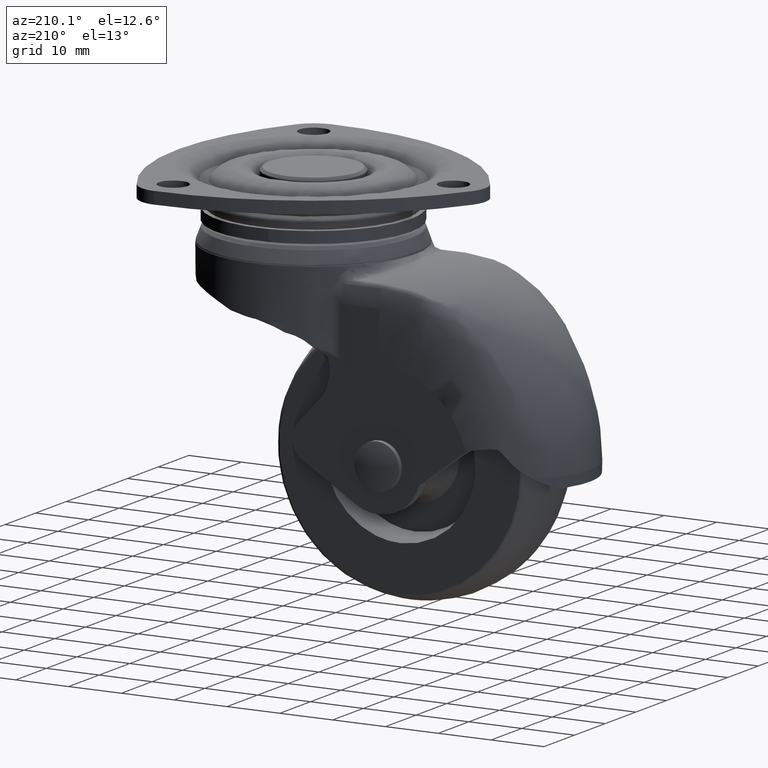
[diagram: clean part render]
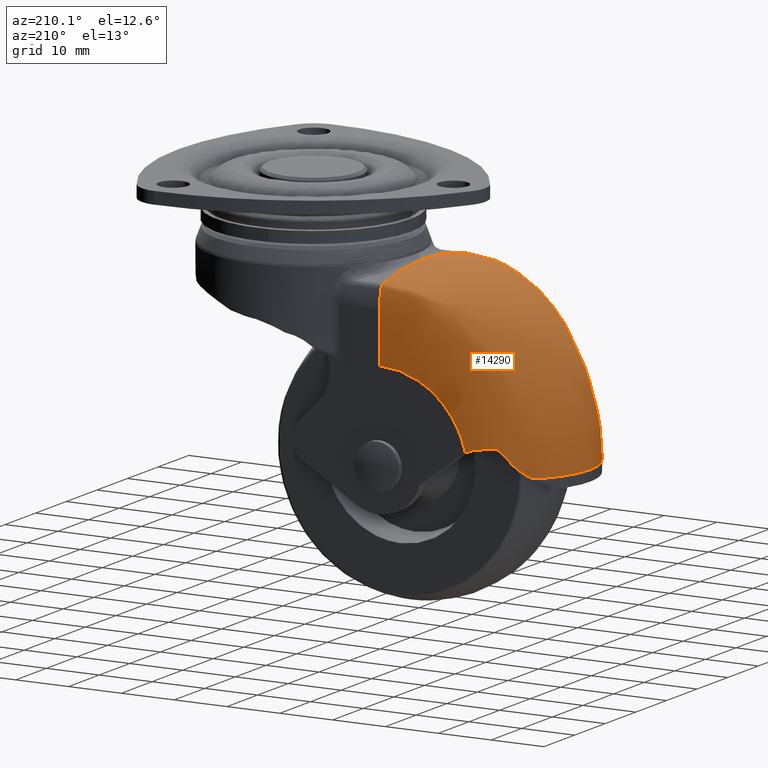
[diagram: same view with one face highlighted and labeled with its STEP entity id]
A machine part, auxiliary view. The second image highlights one B-rep face of the part: STEP entity #14290.
In plain terms, the highlighted face is a freeform B-spline surface patch.
Its self-contained STEP definition (entity closure, byte-faithful):
#13872=CARTESIAN_POINT('',(-37.507785986990321,-14.650000000000000,-45.136798871764711));
#13873=CARTESIAN_POINT('',(-37.590064622058243,-14.649670169952190,-45.137465871882618));
#13874=CARTESIAN_POINT('',(-40.490834383818459,-14.673200490685360,-45.160981256787913));
#13875=CARTESIAN_POINT('',(-43.195526079588312,-13.857220814223821,-45.182907114922060));
#13876=CARTESIAN_POINT('',(-46.193929416081289,-12.010466249976680,-45.207213976324319));
#13877=CARTESIAN_POINT('',(-46.914141203369390,-11.469304168599541,-45.213052446379642));
#13878=CARTESIAN_POINT('',(-47.792334467915687,-10.674972452148920,-45.220171609337442));
#13879=CARTESIAN_POINT('',(-48.000030699863387,-10.475745752831561,-45.221855319951779));
#13880=CARTESIAN_POINT('',(-50.801237226097690,-7.626765067873031,-45.244563585368773));
#13881=CARTESIAN_POINT('',(-52.404853000000188,-4.000654800252035,-45.257563459629957));
#13882=CARTESIAN_POINT('',(-52.404853000000188,4.000654800251945,-45.257563459629957));
#13883=CARTESIAN_POINT('',(-50.801237226097783,7.626765067872871,-45.244563585368773));
#13884=CARTESIAN_POINT('',(-48.000030699863487,10.475745752831401,-45.221855319951793));
#13885=CARTESIAN_POINT('',(-47.792334467915779,10.674972452148740,-45.220171609337442));
#13886=CARTESIAN_POINT('',(-46.914141203369489,11.469304168599400,-45.213052446379642));
#13887=CARTESIAN_POINT('',(-46.193929416081481,12.010466249976560,-45.207213976324319));
#13888=CARTESIAN_POINT('',(-43.195526079588433,13.857220814223890,-45.182907114922060));
#13889=CARTESIAN_POINT('',(-40.490834377141809,14.673200492696809,-45.160981256733777));
#13890=CARTESIAN_POINT('',(-37.590064607752069,14.649670169895810,-45.137465871766643));
#13891=CARTESIAN_POINT('',(-37.507785965550809,14.650000000000000,-45.136798871590912));
#13892=CARTESIAN_POINT('',(-37.582172990328559,-14.650000000000009,-35.908108779774253));
#13893=CARTESIAN_POINT('',(-37.664768644907006,-14.649666847081050,-35.863914424601653));
#13894=CARTESIAN_POINT('',(-40.576766111574941,-14.673434223911050,-34.305728627762882));
#13895=CARTESIAN_POINT('',(-43.290710124771721,-13.849233964339311,-32.855113936310701));
#13896=CARTESIAN_POINT('',(-46.295826234948890,-11.983874280605169,-31.253513909538722));
#13897=CARTESIAN_POINT('',(-47.017314881525643,-11.438862998568530,-30.869431407652250));
#13898=CARTESIAN_POINT('',(-47.896743636444263,-10.640697658623020,-30.401692117269569));
#13899=CARTESIAN_POINT('',(-48.105109771162113,-10.442204170076099,-30.290372753182709));
#13900=CARTESIAN_POINT('',(-50.928019005876948,-7.612494868448397,-28.765623190854281));
#13901=CARTESIAN_POINT('',(-52.544766047531802,-3.995406374036487,-27.891439842274089));
#13902=CARTESIAN_POINT('',(-52.544766047531802,3.995406376460966,-27.891439842274089));
#13903=CARTESIAN_POINT('',(-50.928019005876948,7.612494873297376,-28.765623190854232));
#13904=CARTESIAN_POINT('',(-48.105109771162311,10.442204180150449,-30.290372753182599));
#13905=CARTESIAN_POINT('',(-47.896743636444462,10.640697668697371,-30.401692117269480));
#13906=CARTESIAN_POINT('',(-47.017314881525763,11.438862998568389,-30.869431407652151));
#13907=CARTESIAN_POINT('',(-46.295826234948990,11.983874280605050,-31.253513909538611));
#13908=CARTESIAN_POINT('',(-43.290710124771849,13.849233964339390,-32.855113936310637));
#13909=CARTESIAN_POINT('',(-40.576766104875453,14.673434225942760,-34.305728631343783));
#13910=CARTESIAN_POINT('',(-37.664768630545538,14.649666847024100,-35.863914432286229));
#13911=CARTESIAN_POINT('',(-37.582172968806319,14.650000000000009,-35.908108791290282));
#13912=CARTESIAN_POINT('',(-30.072736908839349,-14.650000000000009,-28.452642677080419));
#13913=CARTESIAN_POINT('',(-30.123359264502710,-14.650003322973751,-28.358362780935948));
#13914=CARTESIAN_POINT('',(-31.902942617504220,-14.649766259556740,-25.043928728701260));
#13915=CARTESIAN_POINT('',(-33.684501418985640,-14.657987096514580,-21.728424403101020));
#13916=CARTESIAN_POINT('',(-36.015765977498781,-14.676592790518701,-17.396990294335570));
#13917=CARTESIAN_POINT('',(-36.609457444492222,-14.521353838594649,-16.294493497948551));
#13918=CARTESIAN_POINT('',(-37.365687286906343,-14.111383475879810,-14.890672815705271));
#13919=CARTESIAN_POINT('',(-37.506575165544923,-13.838644632065790,-14.628559709111070));
#13920=CARTESIAN_POINT('',(-38.133488785312707,-9.057503682726635,-13.437654587055160));
#13921=CARTESIAN_POINT('',(-38.421313823683398,-4.526865109606915,-12.886736109187421));
#13922=CARTESIAN_POINT('',(-38.421313823683398,4.526864866519200,-12.886736109187460));
#13923=CARTESIAN_POINT('',(-38.133488785312707,9.057503196550945,-13.437654587055210));
#13924=CARTESIAN_POINT('',(-37.506575165544923,13.838643621991009,-14.628559709111070));
#13925=CARTESIAN_POINT('',(-37.365687286906343,14.111382465805031,-14.890672815705271));
#13926=CARTESIAN_POINT('',(-36.609457444492222,14.521353838594630,-16.294493497948551));
#13927=CARTESIAN_POINT('',(-36.015765977498781,14.676592790518701,-17.396990294335570));
#13928=CARTESIAN_POINT('',(-33.684501418985640,14.657987096514580,-21.728424403101020));
#13929=CARTESIAN_POINT('',(-31.902942613106742,14.649766259536481,-25.043928736885039));
#13930=CARTESIAN_POINT('',(-30.123359255717350,14.650003322974319,-28.358362797298280));
#13931=CARTESIAN_POINT('',(-30.072736895661119,14.650000000000009,-28.452642701624029));
#13932=CARTESIAN_POINT('',(-20.863479068274081,-14.650000000000000,-28.526499447278550));
#13933=CARTESIAN_POINT('',(-20.862718797546670,-14.650000000000000,-28.432715298185670));
#13934=CARTESIAN_POINT('',(-20.835990923030330,-14.650000000000000,-25.135664815759430));
#13935=CARTESIAN_POINT('',(-20.809263048513991,-14.650000000000000,-21.838614333333190));
#13936=CARTESIAN_POINT('',(-20.774368715064739,-14.650000000000000,-17.534180067059989));
#13937=CARTESIAN_POINT('',(-20.765488807454741,-14.490911728554980,-16.438787926860439));
#13938=CARTESIAN_POINT('',(-20.754183630743938,-14.077107623964819,-15.044223675016100));
#13939=CARTESIAN_POINT('',(-20.752070879417101,-13.805102013562440,-14.783602585332529));
#13940=CARTESIAN_POINT('',(-20.742390265535491,-9.043233042645131,-13.589438318771411));
#13941=CARTESIAN_POINT('',(-20.737898484211101,-4.521616521322500,-13.035349000015289));
#13942=CARTESIAN_POINT('',(-20.737898484211101,4.521616280659419,-13.035349000015310));
#13943=CARTESIAN_POINT('',(-20.742390265535491,9.043232561318710,-13.589438318771430));
#13944=CARTESIAN_POINT('',(-20.752070879417101,13.805101013562460,-14.783602585332529));
#13945=CARTESIAN_POINT('',(-20.754183630743938,14.077106623964839,-15.044223675016100));
#13946=CARTESIAN_POINT('',(-20.765488807454741,14.490911728554959,-16.438787926860439));
#13947=CARTESIAN_POINT('',(-20.774368715064739,14.650000000000000,-17.534180067059989));
#13948=CARTESIAN_POINT('',(-20.809263048513991,14.650000000000000,-21.838614333333190));
#13949=CARTESIAN_POINT('',(-20.835990923096301,14.650000000000000,-25.135664823897649));
#13950=CARTESIAN_POINT('',(-20.862718797678621,14.650000000000000,-28.432715314462111));
#13951=CARTESIAN_POINT('',(-20.863479068472000,14.650000000000000,-28.526499471693210));
#13952=B_SPLINE_SURFACE_WITH_KNOTS('',3,3,((#13872,#13892,#13912,#13932),(#13873,#13893,#13913,#13933),(#13874,#13894,#13914,#13934),(#13875,#13895,#13915,#13935),(#13876,#13896,#13916,#13936),(#13877,#13897,#13917,#13937),(#13878,#13898,#13918,#13938),(#13879,#13899,#13919,#13939),(#13880,#13900,#13920,#13940),(#13881,#13901,#13921,#13941),(#13882,#13902,#13922,#13942),(#13883,#13903,#13923,#13943),(#13884,#13904,#13924,#13944),(#13885,#13905,#13925,#13945),(#13886,#13906,#13926,#13946),(#13887,#13907,#13927,#13947),(#13888,#13908,#13928,#13948),(#13889,#13909,#13929,#13949),(#13890,#13910,#13930,#13950),(#13891,#13911,#13931,#13951)),.UNSPECIFIED.,.F.,.F.,.U.,(4,1,2,2,2,2,2,2,2,1,4),(4,4),(0.0,0.281361691944565,9.891476450282717,13.195088795479849,14.255608239045751,27.923531647017619,41.591455054989268,42.651974498555127,45.955586843752343,55.565701602090712,55.847063318450743),(0.0,52.759160278087343),.UNSPECIFIED.);
#13953=CARTESIAN_POINT('',(-40.372742061059107,-14.326195942567001,-40.232056483145563));
#13954=VERTEX_POINT('',#13953);
#13955=CARTESIAN_POINT('',(-38.246648354372397,-14.616795402978999,-40.629877154874400));
#13956=VERTEX_POINT('',#13955);
#13957=CARTESIAN_POINT('',(-40.372742061059107,-14.326195942567001,-40.232056483145563));
#13958=CARTESIAN_POINT('',(-39.668545982057331,-14.473466884478171,-40.351903330451243));
#13959=CARTESIAN_POINT('',(-38.959746059757862,-14.569868453569709,-40.484304582149221));
#13960=CARTESIAN_POINT('',(-38.246648354372397,-14.616795402978999,-40.629877154874400));
#13961=QUASI_UNIFORM_CURVE('',3,(#13957,#13958,#13959,#13960),.UNSPECIFIED.,.F.,.U.);
#13962=EDGE_CURVE('',#13954,#13956,#13961,.T.);
#13963=ORIENTED_EDGE('',*,*,#13962,.T.);
#13964=CARTESIAN_POINT('',(-37.292854558070047,-14.650000000000000,-41.080166239784248));
#13965=VERTEX_POINT('',#13964);
#13966=CARTESIAN_POINT('',(-38.246648354372397,-14.616795402978999,-40.629877154874400));
#13967=CARTESIAN_POINT('',(-37.921902700070717,-14.639151141334960,-40.764704530933258));
#13968=CARTESIAN_POINT('',(-37.603950858915617,-14.650000000403971,-40.914773495138839));
#13969=CARTESIAN_POINT('',(-37.292854558070047,-14.650000000000000,-41.080166239784248));
#13970=QUASI_UNIFORM_CURVE('',3,(#13966,#13967,#13968,#13969),.UNSPECIFIED.,.F.,.U.);
#13971=EDGE_CURVE('',#13956,#13965,#13970,.T.);
#13972=ORIENTED_EDGE('',*,*,#13971,.T.);
#13973=CARTESIAN_POINT('',(-32.847470174085998,-14.650000000000000,-33.152529825918243));
#13974=VERTEX_POINT('',#13973);
#13975=CARTESIAN_POINT('',(-37.292854558070047,-14.650000000000000,-41.080166239784248));
#13976=CARTESIAN_POINT('',(-36.985582795129389,-14.650000000000000,-39.803651308520237));
#13977=CARTESIAN_POINT('',(-36.481438105542303,-14.650000000000000,-38.587721203335882));
#13978=CARTESIAN_POINT('',(-35.849127931827191,-14.650000000000000,-37.062672954460808));
#13979=CARTESIAN_POINT('',(-34.932129682278990,-14.650000000000000,-35.691267175491852));
#13980=CARTESIAN_POINT('',(-34.014775339978222,-14.650000000000000,-34.319328846260198));
#13981=CARTESIAN_POINT('',(-32.847470174085998,-14.650000000000000,-33.152529825918243));
#13982=B_SPLINE_CURVE_WITH_KNOTS('',2,(#13975,#13976,#13977,#13978,#13979,#13980,#13981),.UNSPECIFIED.,.F.,.U.,(3,2,2,3),(0.0,0.199482820191206,0.449482820191206,0.699482820191206),.UNSPECIFIED.);
#13983=EDGE_CURVE('',#13965,#13974,#13982,.T.);
#13984=ORIENTED_EDGE('',*,*,#13983,.T.);
#13985=CARTESIAN_POINT('',(-21.000000000000799,-14.650000000000000,-28.245146999999900));
#13986=VERTEX_POINT('',#13985);
#13987=CARTESIAN_POINT('',(-21.000000000000799,-14.650000000000000,-28.245146999999900));
#13988=CARTESIAN_POINT('',(-22.650204082939549,-14.650000000000000,-28.245196771580240));
#13989=CARTESIAN_POINT('',(-24.268709667104250,-14.650000000000000,-28.567086802280269));
#13990=CARTESIAN_POINT('',(-25.886724423888399,-14.650000000000000,-28.888879216733478));
#13991=CARTESIAN_POINT('',(-27.411804654814290,-14.650000000000000,-29.520534243065299));
#13992=CARTESIAN_POINT('',(-28.935951125976850,-14.650000000000000,-30.151802526433759));
#13993=CARTESIAN_POINT('',(-30.308497585421300,-14.650000000000000,-31.068848871905139));
#13994=CARTESIAN_POINT('',(-31.680203676837941,-14.650000000000000,-31.985333738074019));
#13995=CARTESIAN_POINT('',(-32.847470174085998,-14.650000000000000,-33.152529825918279));
#13996=B_SPLINE_CURVE_WITH_KNOTS('',2,(#13987,#13988,#13989,#13990,#13991,#13992,#13993,#13994,#13995),.UNSPECIFIED.,.F.,.U.,(3,2,2,2,3),(0.0,0.250000000000000,0.500000000000000,0.750000000000000,1.0),.UNSPECIFIED.);
#13997=EDGE_CURVE('',#13986,#13974,#13996,.T.);
#13998=ORIENTED_EDGE('',*,*,#13997,.F.);
#13999=CARTESIAN_POINT('',(-21.000000000000799,-14.649900124531261,-18.635348771970850));
#14000=VERTEX_POINT('',#13999);
#14001=CARTESIAN_POINT('',(-21.000000000000799,-14.650000000000000,-28.245146999999900));
#14002=CARTESIAN_POINT('',(-21.000000000000799,-14.649900124531261,-18.635348771970850));
#14003=QUASI_UNIFORM_CURVE('',1,(#14001,#14002),.UNSPECIFIED.,.F.,.U.);
#14004=EDGE_CURVE('',#13986,#14000,#14003,.T.);
#14005=ORIENTED_EDGE('',*,*,#14004,.T.);
#14006=CARTESIAN_POINT('',(-21.000000000000799,-14.177645488963741,-15.383120410583549));
#14007=VERTEX_POINT('',#14006);
#14008=CARTESIAN_POINT('',(-21.000000000000799,-14.649900124531261,-18.635348771970850));
#14009=CARTESIAN_POINT('',(-21.000000000000799,-14.649913433593991,-18.085720393858590));
#14010=CARTESIAN_POINT('',(-21.000000000000799,-14.610223001177809,-17.536095984093969));
#14011=CARTESIAN_POINT('',(-21.000000000000799,-14.452257703102740,-16.448252406921750));
#14012=CARTESIAN_POINT('',(-21.000000000000810,-14.333983990675319,-15.910041074401111));
#14013=CARTESIAN_POINT('',(-21.000000000000799,-14.177645488963741,-15.383120410583549));
#14014=B_SPLINE_CURVE_WITH_KNOTS('',3,(#14008,#14009,#14010,#14011,#14012,#14013),.UNSPECIFIED.,.F.,.U.,(4,2,4),(0.000000096777084,0.500000096777084,1.0),.UNSPECIFIED.);
#14015=EDGE_CURVE('',#14000,#14007,#14014,.T.);
#14016=ORIENTED_EDGE('',*,*,#14015,.T.);
#14017=CARTESIAN_POINT('',(-21.000000000000799,-13.462214724438899,-14.697654289980861));
#14018=VERTEX_POINT('',#14017);
#14019=CARTESIAN_POINT('',(-21.000000000000799,-14.177645488963741,-15.383120410583549));
#14020=CARTESIAN_POINT('',(-21.000000000000799,-14.153072149199939,-15.300305453071790));
#14021=CARTESIAN_POINT('',(-21.000000000000799,-14.117709626803769,-15.220698882076810));
#14022=CARTESIAN_POINT('',(-21.000000000000799,-14.027757594503580,-15.073195832365119));
#14023=CARTESIAN_POINT('',(-21.000000000000799,-13.973174825767741,-15.005310407794040));
#14024=CARTESIAN_POINT('',(-21.000000000000799,-13.848425182262970,-14.885785698458140));
#14025=CARTESIAN_POINT('',(-21.000000000000799,-13.778267656458199,-14.834155371091470));
#14026=CARTESIAN_POINT('',(-21.000000000000799,-13.627052215935921,-14.750591851949430));
#14027=CARTESIAN_POINT('',(-21.000000000000810,-13.546005633577341,-14.718664922575471));
#14028=CARTESIAN_POINT('',(-21.000000000000799,-13.462214724438899,-14.697654289980861));
#14029=B_SPLINE_CURVE_WITH_KNOTS('',3,(#14019,#14020,#14021,#14022,#14023,#14024,#14025,#14026,#14027,#14028),.UNSPECIFIED.,.F.,.U.,(4,2,2,2,4),(0.0,0.250000000000000,0.500000000000000,0.750000000000000,1.0),.UNSPECIFIED.);
#14030=EDGE_CURVE('',#14007,#14018,#14029,.T.);
#14031=ORIENTED_EDGE('',*,*,#14030,.T.);
#14032=CARTESIAN_POINT('',(-21.000000000000799,13.462208582764459,-14.697673685123281));
#14033=VERTEX_POINT('',#14032);
#14034=CARTESIAN_POINT('',(-21.000000000000799,-13.462214724438899,-14.697654289980861));
#14035=CARTESIAN_POINT('',(-21.000000000000810,-11.263848638151369,-14.146357031961500));
#14036=CARTESIAN_POINT('',(-21.000000000000799,-9.031583582280856,-13.730271331418530));
#14037=CARTESIAN_POINT('',(-21.000000000000810,-4.532871494255408,-13.174788938461880));
#14038=CARTESIAN_POINT('',(-21.000000000000799,-2.266441529053877,-13.035394364719719));
#14039=CARTESIAN_POINT('',(-21.000000000000799,2.266435601790807,-13.035397640305311));
#14040=CARTESIAN_POINT('',(-21.000000000000799,4.532865569480349,-13.174795489620660));
#14041=CARTESIAN_POINT('',(-21.000000000000810,9.031577584173157,-13.730284374092101));
#14042=CARTESIAN_POINT('',(-21.000000000000799,11.263842565488041,-14.146373280311980));
#14043=CARTESIAN_POINT('',(-21.000000000000799,13.462208582764459,-14.697673685123281));
#14044=B_SPLINE_CURVE_WITH_KNOTS('',3,(#14034,#14035,#14036,#14037,#14038,#14039,#14040,#14041,#14042,#14043),.UNSPECIFIED.,.F.,.U.,(4,2,2,2,4),(0.000000019321914,0.250000009252338,0.500000009252337,0.750000009252337,0.999999989930423),.UNSPECIFIED.);
#14045=EDGE_CURVE('',#14018,#14033,#14044,.T.);
#14046=ORIENTED_EDGE('',*,*,#14045,.T.);
#14047=CARTESIAN_POINT('',(-21.000000000000799,14.177642531071800,-15.383121012123500));
#14048=VERTEX_POINT('',#14047);
#14049=CARTESIAN_POINT('',(-21.000000000000799,13.462208582764459,-14.697673685123281));
#14050=CARTESIAN_POINT('',(-21.000000000000799,13.545999732416661,-14.718682893930421));
#14051=CARTESIAN_POINT('',(-21.000000000000799,13.627046573321820,-14.750608293958440));
#14052=CARTESIAN_POINT('',(-21.000000000000799,13.778262549820580,-14.834168644986971));
#14053=CARTESIAN_POINT('',(-21.000000000000799,13.848420353015120,-14.885797333823479));
#14054=CARTESIAN_POINT('',(-21.000000000000799,13.973170551665991,-15.005318766109850));
#14055=CARTESIAN_POINT('',(-21.000000000000799,14.027753598116581,-15.073202552407180));
#14056=CARTESIAN_POINT('',(-21.000000000000799,14.117706167669761,-15.220702435015790));
#14057=CARTESIAN_POINT('',(-21.000000000000810,14.153068949563931,-15.300307477418800));
#14058=CARTESIAN_POINT('',(-21.000000000000799,14.177642531071800,-15.383121012123500));
#14059=B_SPLINE_CURVE_WITH_KNOTS('',3,(#14049,#14050,#14051,#14052,#14053,#14054,#14055,#14056,#14057,#14058),.UNSPECIFIED.,.F.,.U.,(4,2,2,2,4),(0.0,0.250000000000000,0.500000000000000,0.750000000000000,1.0),.UNSPECIFIED.);
#14060=EDGE_CURVE('',#14033,#14048,#14059,.T.);
#14061=ORIENTED_EDGE('',*,*,#14060,.T.);
#14062=CARTESIAN_POINT('',(-21.000000000000799,14.649899794524300,-18.635348776859349));
#14063=VERTEX_POINT('',#14062);
#14064=CARTESIAN_POINT('',(-21.000000000000799,14.177642531071800,-15.383121012123500));
#14065=CARTESIAN_POINT('',(-21.000000000000799,14.333981478184111,-15.910041567714000));
#14066=CARTESIAN_POINT('',(-21.000000000000799,14.452255635476980,-16.448252792962968));
#14067=CARTESIAN_POINT('',(-21.000000000000799,14.610221814477040,-17.536096170900631));
#14068=CARTESIAN_POINT('',(-21.000000000000810,14.649912681111770,-18.085720488967400));
#14069=CARTESIAN_POINT('',(-21.000000000000799,14.649899794524300,-18.635348776859349));
#14070=B_SPLINE_CURVE_WITH_KNOTS('',3,(#14064,#14065,#14066,#14067,#14068,#14069),.UNSPECIFIED.,.F.,.U.,(4,2,4),(0.0,0.499999891552238,0.999999891552238),.UNSPECIFIED.);
#14071=EDGE_CURVE('',#14048,#14063,#14070,.T.);
#14072=ORIENTED_EDGE('',*,*,#14071,.T.);
#14073=CARTESIAN_POINT('',(-21.000000000000799,14.650000000000000,-28.245146999999900));
#14074=VERTEX_POINT('',#14073);
#14075=CARTESIAN_POINT('',(-21.000000000000799,14.649899794524300,-18.635348776859349));
#14076=CARTESIAN_POINT('',(-21.000000000000799,14.650000000000000,-28.245146999999900));
#14077=QUASI_UNIFORM_CURVE('',1,(#14075,#14076),.UNSPECIFIED.,.F.,.U.);
#14078=EDGE_CURVE('',#14063,#14074,#14077,.T.);
#14079=ORIENTED_EDGE('',*,*,#14078,.T.);
#14080=CARTESIAN_POINT('',(-32.847470174085643,14.650000000000000,-33.152529825917902));
#14081=VERTEX_POINT('',#14080);
#14082=CARTESIAN_POINT('',(-21.000000000000799,14.650000000000000,-28.245146999999900));
#14083=CARTESIAN_POINT('',(-22.650714324325740,14.650000000000000,-28.245196786969551));
#14084=CARTESIAN_POINT('',(-24.268709667104090,14.650000000000000,-28.567086802280240));
#14085=CARTESIAN_POINT('',(-25.887696265621699,14.650000000000000,-28.889174021696920));
#14086=CARTESIAN_POINT('',(-27.411804654814102,14.650000000000000,-29.520534243065200));
#14087=CARTESIAN_POINT('',(-28.936846780465050,14.650000000000000,-30.152281263732920));
#14088=CARTESIAN_POINT('',(-30.308497585420991,14.650000000000000,-31.068848871904919));
#14089=CARTESIAN_POINT('',(-31.680564482878999,14.650000000000000,-31.985694522351260));
#14090=CARTESIAN_POINT('',(-32.847470174085643,14.650000000000000,-33.152529825917917));
#14091=B_SPLINE_CURVE_WITH_KNOTS('',2,(#14082,#14083,#14084,#14085,#14086,#14087,#14088,#14089,#14090),.UNSPECIFIED.,.F.,.U.,(3,2,2,2,3),(0.0,0.250000000000000,0.500000000000000,0.750000000000000,1.0),.UNSPECIFIED.);
#14092=EDGE_CURVE('',#14074,#14081,#14091,.T.);
#14093=ORIENTED_EDGE('',*,*,#14092,.T.);
#14094=CARTESIAN_POINT('',(-37.292860153858548,14.650000000000000,-41.080163247812052));
#14095=VERTEX_POINT('',#14094);
#14096=CARTESIAN_POINT('',(-37.292860153858548,14.650000000000000,-41.080163247812052));
#14097=CARTESIAN_POINT('',(-36.985788045440948,14.650000000000000,-39.804452774880197));
#14098=CARTESIAN_POINT('',(-36.481425262687267,14.650000000000000,-38.587724295877052));
#14099=CARTESIAN_POINT('',(-35.849731495196792,14.650000000000000,-37.063821614719288));
#14100=CARTESIAN_POINT('',(-34.932123310726588,14.650000000000000,-35.691268709752393));
#14101=CARTESIAN_POINT('',(-34.015234199612387,14.650000000000000,-34.319791390466229));
#14102=CARTESIAN_POINT('',(-32.847470174085643,14.650000000000000,-33.152529825917902));
#14103=B_SPLINE_CURVE_WITH_KNOTS('',2,(#14096,#14097,#14098,#14099,#14100,#14101,#14102),.UNSPECIFIED.,.F.,.U.,(3,2,2,3),(0.300549106844891,0.500000000000000,0.750000000000000,1.0),.UNSPECIFIED.);
#14104=EDGE_CURVE('',#14095,#14081,#14103,.T.);
#14105=ORIENTED_EDGE('',*,*,#14104,.F.);
#14106=CARTESIAN_POINT('',(-38.246648354372397,14.616795402978999,-40.629877154874400));
#14107=VERTEX_POINT('',#14106);
#14108=CARTESIAN_POINT('',(-37.292860153858548,14.650000000000000,-41.080163247812052));
#14109=CARTESIAN_POINT('',(-37.603954589441280,14.650000000403960,-40.914771500490708));
#14110=CARTESIAN_POINT('',(-37.921904565333563,14.639151141334960,-40.764703533609193));
#14111=CARTESIAN_POINT('',(-38.246648354372397,14.616795402978999,-40.629877154874400));
#14112=QUASI_UNIFORM_CURVE('',3,(#14108,#14109,#14110,#14111),.UNSPECIFIED.,.F.,.U.);
#14113=EDGE_CURVE('',#14095,#14107,#14112,.T.);
#14114=ORIENTED_EDGE('',*,*,#14113,.T.);
#14115=CARTESIAN_POINT('',(-40.372742061059107,14.326195942567001,-40.232056483145563));
#14116=VERTEX_POINT('',#14115);
#14117=CARTESIAN_POINT('',(-38.246648354372397,14.616795402978999,-40.629877154874400));
#14118=CARTESIAN_POINT('',(-38.959746059757883,14.569868453569690,-40.484304582149278));
#14119=CARTESIAN_POINT('',(-39.668545982057310,14.473466884478180,-40.351903330451243));
#14120=CARTESIAN_POINT('',(-40.372742061059107,14.326195942567001,-40.232056483145563));
#14121=QUASI_UNIFORM_CURVE('',3,(#14117,#14118,#14119,#14120),.UNSPECIFIED.,.F.,.U.);
#14122=EDGE_CURVE('',#14107,#14116,#14121,.T.);
#14123=ORIENTED_EDGE('',*,*,#14122,.T.);
#14124=CARTESIAN_POINT('',(-42.645722449970712,13.674690328864600,-40.097900892828697));
#14125=VERTEX_POINT('',#14124);
#14126=CARTESIAN_POINT('',(-40.372742061059107,14.326195942567001,-40.232056483145563));
#14127=CARTESIAN_POINT('',(-40.756499802427193,14.245939352025029,-40.166744358720081));
#14128=CARTESIAN_POINT('',(-41.137893824981333,14.151490873396000,-40.123917262346232));
#14129=CARTESIAN_POINT('',(-41.706303660981241,13.988655934711939,-40.090988159117153));
#14130=CARTESIAN_POINT('',(-41.895158862874247,13.930842642940959,-40.085244383038543));
#14131=CARTESIAN_POINT('',(-42.271602796781963,13.808077722687980,-40.083967369077023));
#14132=CARTESIAN_POINT('',(-42.459418607528043,13.743037205462160,-40.088453168546970));
#14133=CARTESIAN_POINT('',(-42.645722449970712,13.674690328864600,-40.097900892828697));
#14134=B_SPLINE_CURVE_WITH_KNOTS('',3,(#14126,#14127,#14128,#14129,#14130,#14131,#14132,#14133),.UNSPECIFIED.,.F.,.U.,(4,2,2,4),(0.0,0.500000000000004,0.750000000000002,1.0),.UNSPECIFIED.);
#14135=EDGE_CURVE('',#14116,#14125,#14134,.T.);
#14136=ORIENTED_EDGE('',*,*,#14135,.T.);
#14137=CARTESIAN_POINT('',(-43.217320588680103,13.472793029645761,-40.491776581346798));
#14138=VERTEX_POINT('',#14137);
#14139=CARTESIAN_POINT('',(-42.645722449970712,13.674690328864600,-40.097900892828697));
#14140=CARTESIAN_POINT('',(-42.749776514839262,13.639166311836840,-40.149833104303021));
#14141=CARTESIAN_POINT('',(-42.849375468691903,13.604435610885110,-40.208637397200732));
#14142=CARTESIAN_POINT('',(-43.039914855402863,13.536969170083809,-40.339833830548407));
#14143=CARTESIAN_POINT('',(-43.130856557773249,13.504231029136751,-40.412223146906094));
#14144=CARTESIAN_POINT('',(-43.217320588680103,13.472793029645761,-40.491776581346798));
#14145=B_SPLINE_CURVE_WITH_KNOTS('',3,(#14139,#14140,#14141,#14142,#14143,#14144),.UNSPECIFIED.,.F.,.U.,(4,2,4),(0.0,0.500000000000000,1.0),.UNSPECIFIED.);
#14146=EDGE_CURVE('',#14125,#14138,#14145,.T.);
#14147=ORIENTED_EDGE('',*,*,#14146,.T.);
#14148=CARTESIAN_POINT('',(-44.195182195581800,13.083724732090740,-41.586183455954149));
#14149=VERTEX_POINT('',#14148);
#14150=CARTESIAN_POINT('',(-43.217320588680103,13.472793029645761,-40.491776581346798));
#14151=CARTESIAN_POINT('',(-43.398021881555280,13.407089923572030,-40.658035668724040));
#14152=CARTESIAN_POINT('',(-43.569734684674501,13.341393684038961,-40.832328499937603));
#14153=CARTESIAN_POINT('',(-43.895635732990037,13.211264728382490,-41.197021715544423));
#14154=CARTESIAN_POINT('',(-44.049824239265867,13.146829092909771,-41.387420883897938));
#14155=CARTESIAN_POINT('',(-44.195182195581800,13.083724732090740,-41.586183455954149));
#14156=B_SPLINE_CURVE_WITH_KNOTS('',3,(#14150,#14151,#14152,#14153,#14154,#14155),.UNSPECIFIED.,.F.,.U.,(4,2,4),(0.0,0.500000000000000,1.0),.UNSPECIFIED.);
#14157=EDGE_CURVE('',#14138,#14149,#14156,.T.);
#14158=ORIENTED_EDGE('',*,*,#14157,.T.);
#14159=CARTESIAN_POINT('',(-47.000676586926403,11.361899595868740,-44.460446245965102));
#14160=VERTEX_POINT('',#14159);
#14161=CARTESIAN_POINT('',(-47.000676586926403,11.361899595868740,-44.460446245965102));
#14162=CARTESIAN_POINT('',(-46.754955106900020,11.560351160909940,-44.271447784841747));
#14163=CARTESIAN_POINT('',(-46.509821092673668,11.744256496373019,-44.070105003758677));
#14164=CARTESIAN_POINT('',(-46.144975538226873,11.999646309100511,-43.748414138181531));
#14165=CARTESIAN_POINT('',(-46.023835419049753,12.081361380450289,-43.637902551468571));
#14166=CARTESIAN_POINT('',(-45.782829675766742,12.238145491242021,-43.410095473159963));
#14167=CARTESIAN_POINT('',(-45.662811758139988,12.313305591780679,-43.292644681280230));
#14168=CARTESIAN_POINT('',(-45.068473574583678,12.671834303854810,-42.689602447542612));
#14169=CARTESIAN_POINT('',(-44.616079270785811,12.901000334251901,-42.161718081052207));
#14170=CARTESIAN_POINT('',(-44.195182195581800,13.083724732090740,-41.586183455954149));
#14171=B_SPLINE_CURVE_WITH_KNOTS('',3,(#14161,#14162,#14163,#14164,#14165,#14166,#14167,#14168,#14169,#14170),.UNSPECIFIED.,.F.,.U.,(4,2,2,2,4),(0.0,0.250000000000001,0.375000000000001,0.500000000000002,1.0),.UNSPECIFIED.);
#14172=EDGE_CURVE('',#14160,#14149,#14171,.T.);
#14173=ORIENTED_EDGE('',*,*,#14172,.F.);
#14174=CARTESIAN_POINT('',(-47.702164706120897,10.755231776738841,-45.000000002761787));
#14175=VERTEX_POINT('',#14174);
#14176=CARTESIAN_POINT('',(-47.000676586926403,11.361899595868740,-44.460446245965102));
#14177=CARTESIAN_POINT('',(-47.239554127234861,11.168967815043279,-44.644180330141118));
#14178=CARTESIAN_POINT('',(-47.473452779628623,10.966872712794100,-44.824084869070241));
#14179=CARTESIAN_POINT('',(-47.702164706120897,10.755231776738841,-45.000000002761787));
#14180=QUASI_UNIFORM_CURVE('',3,(#14176,#14177,#14178,#14179),.UNSPECIFIED.,.F.,.U.);
#14181=EDGE_CURVE('',#14160,#14175,#14180,.T.);
#14182=ORIENTED_EDGE('',*,*,#14181,.T.);
#14183=CARTESIAN_POINT('',(-48.113967344433291,10.359114344332699,-45.0));
#14184=VERTEX_POINT('',#14183);
#14185=CARTESIAN_POINT('',(-48.113967344433291,10.359114344332699,-45.0));
#14186=CARTESIAN_POINT('',(-47.979297009641797,10.493819933896610,-45.000000000920480));
#14187=CARTESIAN_POINT('',(-47.841992167938407,10.625889693877140,-45.000000001841322));
#14188=CARTESIAN_POINT('',(-47.702164706120897,10.755231776738841,-45.000000002761787));
#14189=B_SPLINE_CURVE_WITH_KNOTS('',3,(#14185,#14186,#14187,#14188),.UNSPECIFIED.,.F.,.U.,(4,4),(0.0,0.049663269476556),.UNSPECIFIED.);
#14190=EDGE_CURVE('',#14184,#14175,#14189,.T.);
#14191=ORIENTED_EDGE('',*,*,#14190,.F.);
#14192=CARTESIAN_POINT('',(-52.404853000000202,1.851800E-012,-45.0));
#14193=VERTEX_POINT('',#14192);
#14194=CARTESIAN_POINT('',(-52.404853000000209,1.851800E-012,-44.999999999999993));
#14195=CARTESIAN_POINT('',(-52.404853000000081,0.958840257810166,-44.999999999999993));
#14196=CARTESIAN_POINT('',(-52.310417812567529,1.917656806403591,-45.000000000000007));
#14197=CARTESIAN_POINT('',(-51.936296903253918,3.798489628636875,-44.999999999999993));
#14198=CARTESIAN_POINT('',(-51.656620432249611,4.720459394978811,-44.999999999999993));
#14199=CARTESIAN_POINT('',(-50.922755870357960,6.492165173254436,-44.999999999999993));
#14200=CARTESIAN_POINT('',(-50.468585925718067,7.341857376271411,-44.999999999999993));
#14201=CARTESIAN_POINT('',(-49.403179714805553,8.936350451115153,-44.999999999999993));
#14202=CARTESIAN_POINT('',(-48.791969792800963,9.681111895958514,-44.999999999999993));
#14203=CARTESIAN_POINT('',(-48.113967344433320,10.359114344332720,-44.999999999999993));
#14204=B_SPLINE_CURVE_WITH_KNOTS('',3,(#14194,#14195,#14196,#14197,#14198,#14199,#14200,#14201,#14202,#14203),.UNSPECIFIED.,.F.,.U.,(4,2,2,2,4),(0.0,0.250000000000000,0.500000000000000,0.750000000000000,1.0),.UNSPECIFIED.);
#14205=EDGE_CURVE('',#14193,#14184,#14204,.T.);
#14206=ORIENTED_EDGE('',*,*,#14205,.F.);
#14207=CARTESIAN_POINT('',(-48.113967344421802,-10.359114344344199,-45.0));
#14208=VERTEX_POINT('',#14207);
#14209=CARTESIAN_POINT('',(-48.113967344421837,-10.359114344344210,-44.999999999999993));
#14210=CARTESIAN_POINT('',(-48.791969792791377,-9.681111895969581,-44.999999999999993));
#14211=CARTESIAN_POINT('',(-49.403179714797758,-8.936350451125486,-45.000000000000007));
#14212=CARTESIAN_POINT('',(-50.468585925713363,-7.341857376279799,-44.999999999999993));
#14213=CARTESIAN_POINT('',(-50.922755870354550,-6.492165173261608,-44.999999999999993));
#14214=CARTESIAN_POINT('',(-51.656620432248232,-4.720459394983226,-44.999999999999993));
#14215=CARTESIAN_POINT('',(-51.936296903253272,-3.798489628639748,-44.999999999999993));
#14216=CARTESIAN_POINT('',(-52.310417812567700,-1.917656806403236,-44.999999999999993));
#14217=CARTESIAN_POINT('',(-52.404853000000337,-0.958840257808125,-44.999999999999993));
#14218=CARTESIAN_POINT('',(-52.404853000000209,1.851800E-012,-44.999999999999993));
#14219=B_SPLINE_CURVE_WITH_KNOTS('',3,(#14209,#14210,#14211,#14212,#14213,#14214,#14215,#14216,#14217,#14218),.UNSPECIFIED.,.F.,.U.,(4,2,2,2,4),(0.0,0.250000000000000,0.500000000000000,0.750000000000000,1.0),.UNSPECIFIED.);
#14220=EDGE_CURVE('',#14208,#14193,#14219,.T.);
#14221=ORIENTED_EDGE('',*,*,#14220,.F.);
#14222=CARTESIAN_POINT('',(-47.702164706440598,-10.755231775616840,-45.000000001162100));
#14223=VERTEX_POINT('',#14222);
#14224=CARTESIAN_POINT('',(-47.702164706440598,-10.755231775616840,-45.000000001162100));
#14225=CARTESIAN_POINT('',(-47.841992168138738,-10.625889693123289,-45.000000000774783));
#14226=CARTESIAN_POINT('',(-47.979297009731567,-10.493819933520800,-45.000000000387317));
#14227=CARTESIAN_POINT('',(-48.113967344421802,-10.359114344344199,-45.0));
#14228=B_SPLINE_CURVE_WITH_KNOTS('',3,(#14224,#14225,#14226,#14227),.UNSPECIFIED.,.F.,.U.,(4,4),(0.950336730611374,1.0),.UNSPECIFIED.);
#14229=EDGE_CURVE('',#14223,#14208,#14228,.T.);
#14230=ORIENTED_EDGE('',*,*,#14229,.F.);
#14231=CARTESIAN_POINT('',(-47.000676586926403,-11.361899596001980,-44.460446245965102));
#14232=VERTEX_POINT('',#14231);
#14233=CARTESIAN_POINT('',(-47.702164706440598,-10.755231775616840,-45.000000001162100));
#14234=CARTESIAN_POINT('',(-47.473452780062367,-10.966872711348779,-44.824084866941753));
#14235=CARTESIAN_POINT('',(-47.239554127170223,-11.168967815486891,-44.644180330707933));
#14236=CARTESIAN_POINT('',(-47.000676586926403,-11.361899596001980,-44.460446245965102));
#14237=QUASI_UNIFORM_CURVE('',3,(#14233,#14234,#14235,#14236),.UNSPECIFIED.,.F.,.U.);
#14238=EDGE_CURVE('',#14223,#14232,#14237,.T.);
#14239=ORIENTED_EDGE('',*,*,#14238,.T.);
#14240=CARTESIAN_POINT('',(-44.195182195581800,-13.083724732090740,-41.586183455954149));
#14241=VERTEX_POINT('',#14240);
#14242=CARTESIAN_POINT('',(-44.195182195581800,-13.083724732090740,-41.586183455954149));
#14243=CARTESIAN_POINT('',(-44.405637431330071,-12.992359561893659,-41.873960234070353));
#14244=CARTESIAN_POINT('',(-44.624055737257663,-12.889285763065899,-42.149904891632268));
#14245=CARTESIAN_POINT('',(-44.962057769385730,-12.715139755813331,-42.546542965651177));
#14246=CARTESIAN_POINT('',(-45.076455160703851,-12.653832295301759,-42.675873776386943));
#14247=CARTESIAN_POINT('',(-45.308454764330669,-12.524333367867440,-42.928828052172562));
#14248=CARTESIAN_POINT('',(-45.426211060997083,-12.456050177474889,-43.052606425605873));
#14249=CARTESIAN_POINT('',(-46.020576260718940,-12.097417131353110,-43.655538181278828));
#14250=CARTESIAN_POINT('',(-46.509235968142917,-11.758800609931949,-44.082451124522663));
#14251=CARTESIAN_POINT('',(-47.000676586926403,-11.361899596001980,-44.460446245965102));
#14252=B_SPLINE_CURVE_WITH_KNOTS('',3,(#14242,#14243,#14244,#14245,#14246,#14247,#14248,#14249,#14250,#14251),.UNSPECIFIED.,.F.,.U.,(4,2,2,2,4),(0.0,0.249999999999999,0.375000000000000,0.500000000000001,1.0),.UNSPECIFIED.);
#14253=EDGE_CURVE('',#14241,#14232,#14252,.T.);
#14254=ORIENTED_EDGE('',*,*,#14253,.F.);
#14255=CARTESIAN_POINT('',(-43.217320588680103,-13.472793029645761,-40.491776581346798));
#14256=VERTEX_POINT('',#14255);
#14257=CARTESIAN_POINT('',(-44.195182195581800,-13.083724732090740,-41.586183455954149));
#14258=CARTESIAN_POINT('',(-44.049824239265867,-13.146829092909771,-41.387420883897953));
#14259=CARTESIAN_POINT('',(-43.895635732990051,-13.211264728382460,-41.197021715544423));
#14260=CARTESIAN_POINT('',(-43.569734684674494,-13.341393684038939,-40.832328499937553));
#14261=CARTESIAN_POINT('',(-43.398021881555280,-13.407089923572030,-40.658035668724033));
#14262=CARTESIAN_POINT('',(-43.217320588680103,-13.472793029645761,-40.491776581346798));
#14263=B_SPLINE_CURVE_WITH_KNOTS('',3,(#14257,#14258,#14259,#14260,#14261,#14262),.UNSPECIFIED.,.F.,.U.,(4,2,4),(0.0,0.500000000000000,1.0),.UNSPECIFIED.);
#14264=EDGE_CURVE('',#14241,#14256,#14263,.T.);
#14265=ORIENTED_EDGE('',*,*,#14264,.T.);
#14266=CARTESIAN_POINT('',(-42.645722449970712,-13.674690328864600,-40.097900892828697));
#14267=VERTEX_POINT('',#14266);
#14268=CARTESIAN_POINT('',(-43.217320588680103,-13.472793029645761,-40.491776581346798));
#14269=CARTESIAN_POINT('',(-43.130856557773242,-13.504231029136751,-40.412223146906094));
#14270=CARTESIAN_POINT('',(-43.039914855402898,-13.536969170083809,-40.339833830548422));
#14271=CARTESIAN_POINT('',(-42.849375468691917,-13.604435610885099,-40.208637397200732));
#14272=CARTESIAN_POINT('',(-42.749776514839191,-13.639166311836821,-40.149833104303021));
#14273=CARTESIAN_POINT('',(-42.645722449970712,-13.674690328864600,-40.097900892828697));
#14274=B_SPLINE_CURVE_WITH_KNOTS('',3,(#14268,#14269,#14270,#14271,#14272,#14273),.UNSPECIFIED.,.F.,.U.,(4,2,4),(0.0,0.500000000000000,1.0),.UNSPECIFIED.);
#14275=EDGE_CURVE('',#14256,#14267,#14274,.T.);
#14276=ORIENTED_EDGE('',*,*,#14275,.T.);
#14277=CARTESIAN_POINT('',(-42.645722449970712,-13.674690328864600,-40.097900892828697));
#14278=CARTESIAN_POINT('',(-42.273157643115482,-13.811368300977721,-40.079007618669202));
#14279=CARTESIAN_POINT('',(-41.897349803024241,-13.933884546271250,-40.079978644410623));
#14280=CARTESIAN_POINT('',(-41.328954740905459,-14.096777425510780,-40.112819826138548));
#14281=CARTESIAN_POINT('',(-41.138707700798690,-14.147588182287519,-40.129007952725622));
#14282=CARTESIAN_POINT('',(-40.756661345557781,-14.242210869433491,-40.172273574085253));
#14283=CARTESIAN_POINT('',(-40.564602376583601,-14.286071518967409,-40.199403323476851));
#14284=CARTESIAN_POINT('',(-40.372742061059107,-14.326195942567001,-40.232056483145563));
#14285=B_SPLINE_CURVE_WITH_KNOTS('',3,(#14277,#14278,#14279,#14280,#14281,#14282,#14283,#14284),.UNSPECIFIED.,.F.,.U.,(4,2,2,4),(0.0,0.500000000000000,0.750000000000000,1.0),.UNSPECIFIED.);
#14286=EDGE_CURVE('',#14267,#13954,#14285,.T.);
#14287=ORIENTED_EDGE('',*,*,#14286,.T.);
#14288=EDGE_LOOP('',(#13963,#13972,#13984,#13998,#14005,#14016,#14031,#14046,#14061,#14072,#14079,#14093,#14105,#14114,#14123,#14136,#14147,#14158,#14173,#14182,#14191,#14206,#14221,#14230,#14239,#14254,#14265,#14276,#14287));
#14289=FACE_OUTER_BOUND('',#14288,.T.);
#14290=ADVANCED_FACE('',(#14289),#13952,.F.);